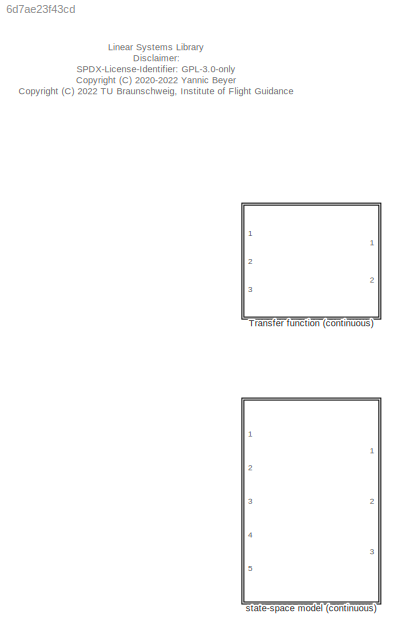
MODEL slx_6d7ae23f43cd
KIND library
CONFIG AbsTol = auto
CONFIG EnableMultiTasking = off
CONFIG FixedStep = auto
CONFIG MaxStep = auto
CONFIG MinStep = auto
CONFIG RelTol = 1e-3
CONFIG SampleTimeConstraint = Unconstrained
CONFIG Solver = VariableStepAuto
CONFIG SolverName = VariableStepAuto
CONFIG StartTime = 0.0
CONFIG StopTime = 10.0
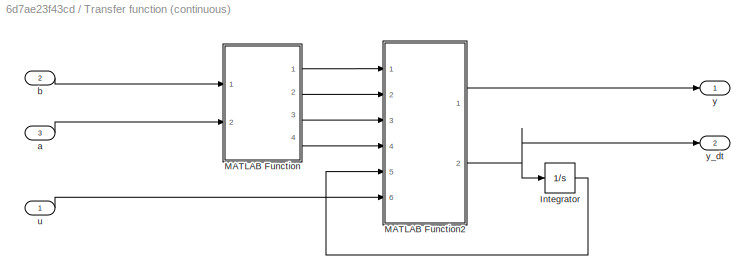
BLOCK [SubSystem] Transfer function (continuous)
  Ports = [3, 2]
  RequestExecContextInheritance = off
BLOCK [Integrator] Transfer function (continuous)/Integrator
  Ports = [1, 1]
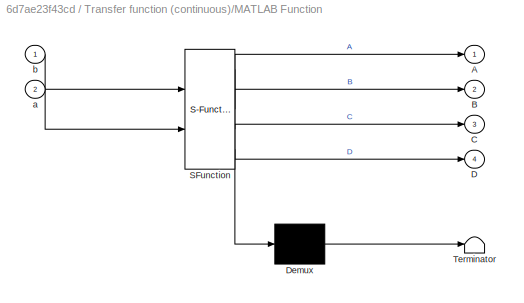
BLOCK [SubSystem] Transfer function (continuous)/MATLAB Function
  ErrorFcn = Stateflow.Translate.translate
  PermitHierarchicalResolution = ExplicitOnly
  Ports = [2, 4]
  RequestExecContextInheritance = off
  SFBlockType = MATLAB Function
  TreatAsAtomicUnit = on
BLOCK [Demux] Transfer function (continuous)/MATLAB Function/ Demux 
  Outputs = 1
  Ports = [1, 1]
BLOCK [S-Function] Transfer function (continuous)/MATLAB Function/ SFunction 
  EnableBusSupport = on
  FunctionName = sf_sfun
  PortCounts = [2 5]
  Ports = [2, 5]
  SFcnIsStateOwnerBlock = off
  SFunctionDeploymentMode = off
  Tag = Stateflow S-Function linear_systems_lib 2
BLOCK [Terminator] Transfer function (continuous)/MATLAB Function/ Terminator 
BLOCK [Outport] Transfer function (continuous)/MATLAB Function/A
  IconDisplay = Port number
BLOCK [Outport] Transfer function (continuous)/MATLAB Function/B
  IconDisplay = Port number
  Port = 2
BLOCK [Outport] Transfer function (continuous)/MATLAB Function/C
  IconDisplay = Port number
  Port = 3
BLOCK [Outport] Transfer function (continuous)/MATLAB Function/D
  IconDisplay = Port number
  Port = 4
BLOCK [Inport] Transfer function (continuous)/MATLAB Function/a
  IconDisplay = Port number
  Port = 2
BLOCK [Inport] Transfer function (continuous)/MATLAB Function/b
  IconDisplay = Port number
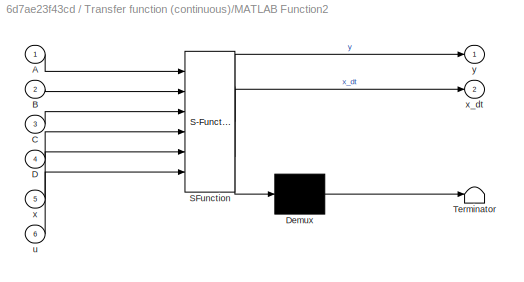
BLOCK [SubSystem] Transfer function (continuous)/MATLAB Function2
  ErrorFcn = Stateflow.Translate.translate
  PermitHierarchicalResolution = ExplicitOnly
  Ports = [6, 2]
  RequestExecContextInheritance = off
  SFBlockType = MATLAB Function
  TreatAsAtomicUnit = on
BLOCK [Demux] Transfer function (continuous)/MATLAB Function2/ Demux 
  Outputs = 1
  Ports = [1, 1]
BLOCK [S-Function] Transfer function (continuous)/MATLAB Function2/ SFunction 
  EnableBusSupport = on
  FunctionName = sf_sfun
  PortCounts = [6 3]
  Ports = [6, 3]
  SFcnIsStateOwnerBlock = off
  SFunctionDeploymentMode = off
  Tag = Stateflow S-Function linear_systems_lib 3
BLOCK [Terminator] Transfer function (continuous)/MATLAB Function2/ Terminator 
BLOCK [Inport] Transfer function (continuous)/MATLAB Function2/A
  IconDisplay = Port number
BLOCK [Inport] Transfer function (continuous)/MATLAB Function2/B
  IconDisplay = Port number
  Port = 2
BLOCK [Inport] Transfer function (continuous)/MATLAB Function2/C
  IconDisplay = Port number
  Port = 3
BLOCK [Inport] Transfer function (continuous)/MATLAB Function2/D
  IconDisplay = Port number
  Port = 4
BLOCK [Inport] Transfer function (continuous)/MATLAB Function2/u
  IconDisplay = Port number
  Port = 6
BLOCK [Inport] Transfer function (continuous)/MATLAB Function2/x
  IconDisplay = Port number
  Port = 5
BLOCK [Outport] Transfer function (continuous)/MATLAB Function2/x_dt
  IconDisplay = Port number
  Port = 2
BLOCK [Outport] Transfer function (continuous)/MATLAB Function2/y
  IconDisplay = Port number
BLOCK [Inport] Transfer function (continuous)/a
  IconDisplay = Port number
  Port = 3
BLOCK [Inport] Transfer function (continuous)/b
  IconDisplay = Port number
  Port = 2
BLOCK [Inport] Transfer function (continuous)/u
  IconDisplay = Port number
BLOCK [Outport] Transfer function (continuous)/y
  IconDisplay = Port number
BLOCK [Outport] Transfer function (continuous)/y_dt
  IconDisplay = Port number
  Port = 2
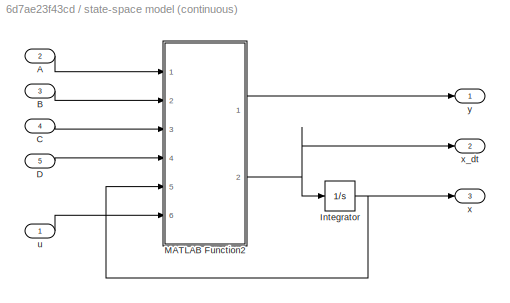
BLOCK [SubSystem] state-space model (continuous)
  Ports = [5, 3]
  RequestExecContextInheritance = off
BLOCK [Inport] state-space model (continuous)/A
  IconDisplay = Port number
  Port = 2
BLOCK [Inport] state-space model (continuous)/B
  IconDisplay = Port number
  Port = 3
BLOCK [Inport] state-space model (continuous)/C
  IconDisplay = Port number
  Port = 4
BLOCK [Inport] state-space model (continuous)/D
  IconDisplay = Port number
  Port = 5
BLOCK [Integrator] state-space model (continuous)/Integrator
  Ports = [1, 1]
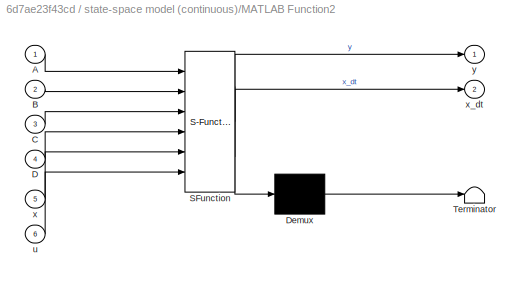
BLOCK [SubSystem] state-space model (continuous)/MATLAB Function2
  ErrorFcn = Stateflow.Translate.translate
  PermitHierarchicalResolution = ExplicitOnly
  Ports = [6, 2]
  RequestExecContextInheritance = off
  SFBlockType = MATLAB Function
  TreatAsAtomicUnit = on
BLOCK [Demux] state-space model (continuous)/MATLAB Function2/ Demux 
  Outputs = 1
  Ports = [1, 1]
BLOCK [S-Function] state-space model (continuous)/MATLAB Function2/ SFunction 
  EnableBusSupport = on
  FunctionName = sf_sfun
  PortCounts = [6 3]
  Ports = [6, 3]
  SFcnIsStateOwnerBlock = off
  SFunctionDeploymentMode = off
  Tag = Stateflow S-Function linear_systems_lib 1
BLOCK [Terminator] state-space model (continuous)/MATLAB Function2/ Terminator 
BLOCK [Inport] state-space model (continuous)/MATLAB Function2/A
  IconDisplay = Port number
BLOCK [Inport] state-space model (continuous)/MATLAB Function2/B
  IconDisplay = Port number
  Port = 2
BLOCK [Inport] state-space model (continuous)/MATLAB Function2/C
  IconDisplay = Port number
  Port = 3
BLOCK [Inport] state-space model (continuous)/MATLAB Function2/D
  IconDisplay = Port number
  Port = 4
BLOCK [Inport] state-space model (continuous)/MATLAB Function2/u
  IconDisplay = Port number
  Port = 6
BLOCK [Inport] state-space model (continuous)/MATLAB Function2/x
  IconDisplay = Port number
  Port = 5
BLOCK [Outport] state-space model (continuous)/MATLAB Function2/x_dt
  IconDisplay = Port number
  Port = 2
BLOCK [Outport] state-space model (continuous)/MATLAB Function2/y
  IconDisplay = Port number
BLOCK [Inport] state-space model (continuous)/u
  IconDisplay = Port number
BLOCK [Outport] state-space model (continuous)/x
  IconDisplay = Port number
  Port = 3
BLOCK [Outport] state-space model (continuous)/x_dt
  IconDisplay = Port number
  Port = 2
BLOCK [Outport] state-space model (continuous)/y
  IconDisplay = Port number
ANNOTATION (root): Linear Systems Library Disclaimer: SPDX-License-Identifier: GPL-3.0-only <copyright redacted>
LINE Transfer function (continuous)/Integrator:1 -> Transfer function (continuous)/MATLAB Function2:5
LINE Transfer function (continuous)/MATLAB Function2:1 -> Transfer function (continuous)/y:1
NET Transfer function (continuous)/MATLAB Function2:2 -> Transfer function (continuous)/Integrator:1, Transfer function (continuous)/y_dt:1
LINE Transfer function (continuous)/MATLAB Function:1 -> Transfer function (continuous)/MATLAB Function2:1
LINE Transfer function (continuous)/MATLAB Function:2 -> Transfer function (continuous)/MATLAB Function2:2
LINE Transfer function (continuous)/MATLAB Function:3 -> Transfer function (continuous)/MATLAB Function2:3
LINE Transfer function (continuous)/MATLAB Function:4 -> Transfer function (continuous)/MATLAB Function2:4
LINE Transfer function (continuous)/a:1 -> Transfer function (continuous)/MATLAB Function:2
LINE Transfer function (continuous)/b:1 -> Transfer function (continuous)/MATLAB Function:1
LINE Transfer function (continuous)/u:1 -> Transfer function (continuous)/MATLAB Function2:6
LINE state-space model (continuous)/A:1 -> state-space model (continuous)/MATLAB Function2:1
LINE state-space model (continuous)/B:1 -> state-space model (continuous)/MATLAB Function2:2
LINE state-space model (continuous)/C:1 -> state-space model (continuous)/MATLAB Function2:3
LINE state-space model (continuous)/D:1 -> state-space model (continuous)/MATLAB Function2:4
NET state-space model (continuous)/Integrator:1 -> state-space model (continuous)/MATLAB Function2:5, state-space model (continuous)/x:1
LINE state-space model (continuous)/MATLAB Function2:1 -> state-space model (continuous)/y:1
NET state-space model (continuous)/MATLAB Function2:2 -> state-space model (continuous)/Integrator:1, state-space model (continuous)/x_dt:1
LINE state-space model (continuous)/u:1 -> state-space model (continuous)/MATLAB Function2:6
note: NET lines group one-source signal fan-out (src -> all destinations, sorted); 1:1 wires keep LINE
CHART state-space model 
(continuous)/MATLAB Function2 states=1 transitions=1
  STATE_LABEL 'eML_blk_kernel()'
  STATE_LABEL 'SCRIPT:\nfunction [ y, x_dt ] = fcn( A, B, C, D, x, u ) %#codegen\n[ y, x_dt ] = ssOutput( A, B, C, D, x, u );\nend'
CHART Transfer function (continuous)/MATLAB Function states=1 transitions=1
  STATE_LABEL 'eML_blk_kernel()'
  STATE_LABEL 'SCRIPT:\nfunction [ A, B, C, D ] = fcn( b, a ) %#codegen\n    [ A, B, C, D ] = tf2ssOcf( b, a );\nend'
CHART Transfer function (continuous)/MATLAB Function2 states=1 transitions=1
  STATE_LABEL 'eML_blk_kernel()'
  STATE_LABEL 'SCRIPT:\nfunction [ y, x_dt ] = fcn( A, B, C, D, x, u ) %#codegen\n[ y, x_dt ] = ssOutput( A, B, C, D, x, u );\nend'
